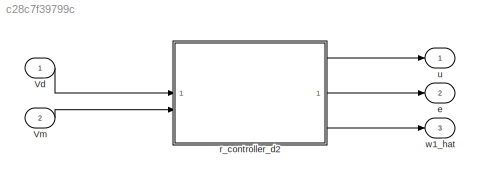
MODEL slx_c28c7f39799c
KIND model
CONFIG AbsTol = auto
CONFIG EnableMultiTasking = off
CONFIG FixedStep = 1e-5
CONFIG MaxStep = 1e-5
CONFIG MinStep = auto
CONFIG RelTol = 1e-3
CONFIG SampleTimeConstraint = Unconstrained
CONFIG SolverName = ode23tb
CONFIG StartTime = 0.0
CONFIG StopTime = 10.0
BLOCK [Inport] Vd
BLOCK [Inport] Vm
  Port = 2
BLOCK [Outport] e
  Port = 2
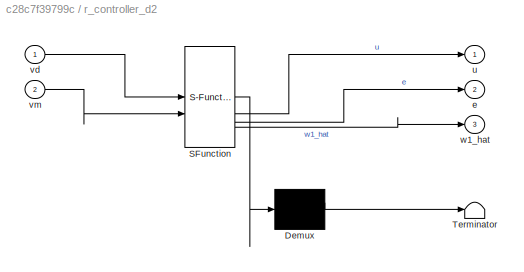
BLOCK [SubSystem] r_controller_d2
  ErrorFcn = Stateflow.Translate.translate
  PermitHierarchicalResolution = ExplicitOnly
  SFBlockType = MATLAB Function
  TreatAsAtomicUnit = on
BLOCK [Demux] r_controller_d2/ Demux 
  Outputs = 1
BLOCK [S-Function] r_controller_d2/ SFunction 
  EnableBusSupport = on
  FunctionName = sf_sfun
  PortCounts = [2 4]
  SFcnIsStateOwnerBlock = off
  SFunctionDeploymentMode = off
  Tag = Stateflow S-Function 2
BLOCK [Terminator] r_controller_d2/ Terminator 
BLOCK [Outport] r_controller_d2/e
  Port = 2
BLOCK [Outport] r_controller_d2/u
BLOCK [Inport] r_controller_d2/vd
BLOCK [Inport] r_controller_d2/vm
  Port = 2
BLOCK [Outport] r_controller_d2/w1_hat
  Port = 3
BLOCK [Outport] u
BLOCK [Outport] w1_hat
  Port = 3
LINE Vd:1 -> r_controller_d2:1
LINE Vm:1 -> r_controller_d2:2
LINE r_controller_d2:1 -> u:1
LINE r_controller_d2:2 -> e:1
LINE r_controller_d2:3 -> w1_hat:1
CHART r_controller_d2 states=1 transitions=1
  STATE_LABEL 'eML_blk_kernel()'
  STATE_LABEL 'SCRIPT:\nfunction [u, e, w1_hat] = r_controller_function_d2(vd, vm)\n    % R Controller with d=2 Preview (Flux_Control_R_newmodel.pdf Page 1)\n    %\n    % 完全平移時序方案：所有估測器公式從 k+1 平移到 k\n    % 輸入：\n    %   vd - 參考電壓向量 [6×1]（需要外部提供 3 步 preview）\n    %   vm - 測量電壓向量 [6×1]\n    % 輸出：\n    %   u      - 控制輸入向量 [6×1]\n    %   e      - 追蹤誤差向量 [6×1]（定義為 δv[k]）\n    %   w1_hat - 干擾估測向量 [6×1]（用於監測干擾大小）\n    %\n    % Autho...<+3608ch>'
CHART  states=0 transitions=0
